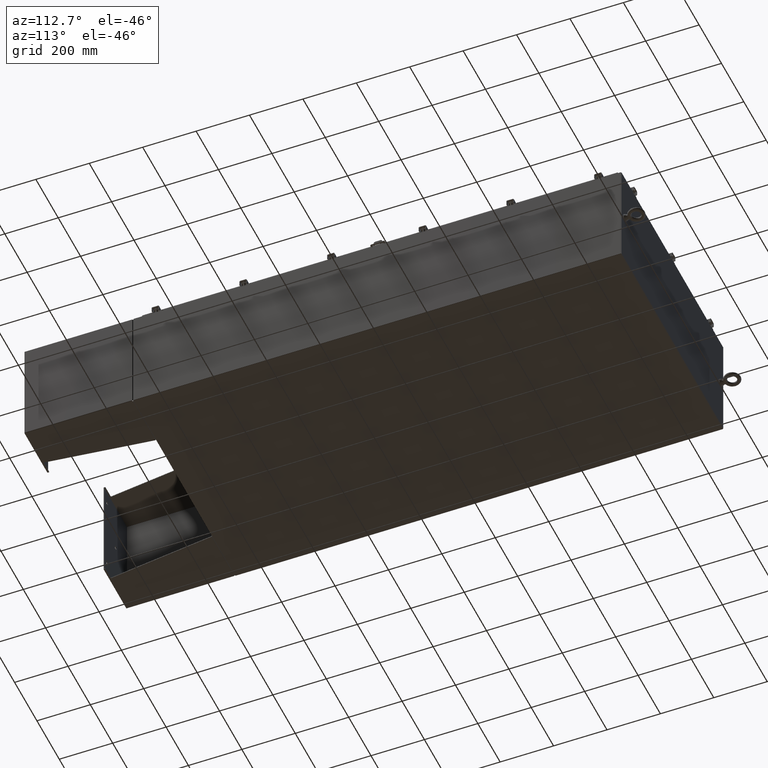
[diagram: clean part render]
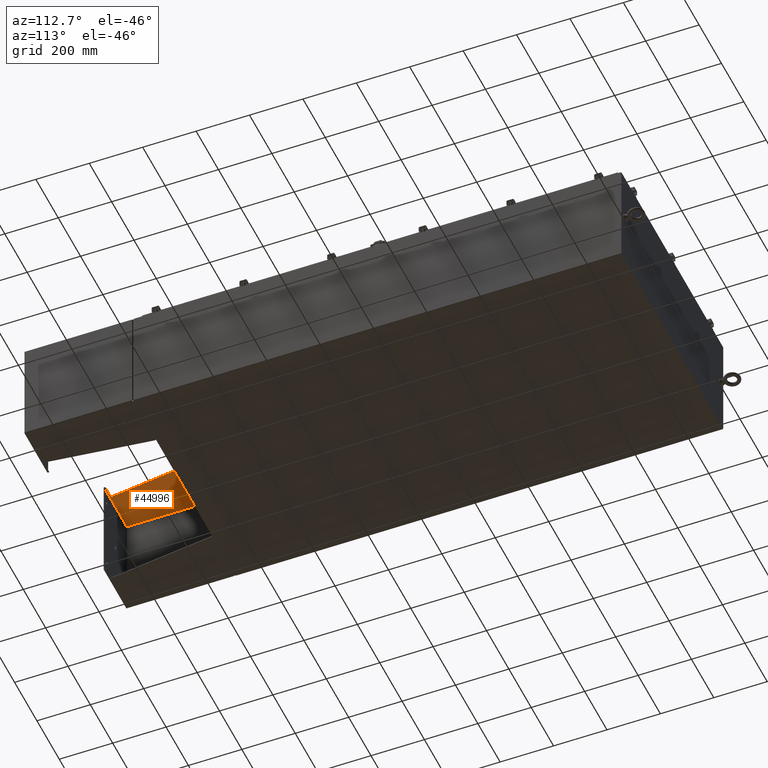
[diagram: same view with one face highlighted and labeled with its STEP entity id]
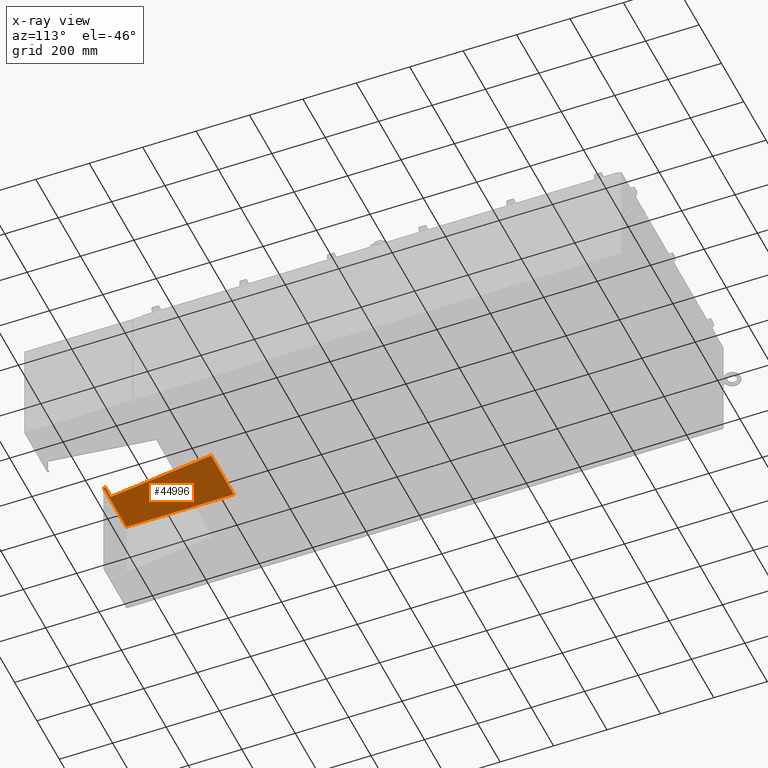
[diagram: x-ray of the same camera — body ghosted, the highlighted face saturated]
A machine part, auxiliary view. The second image highlights one B-rep face of the part: STEP entity #44996.
The next image is the same camera in x-ray: the body ghosted, the highlighted face saturated — about 39% of this face is hidden behind the body in this view.
In plain terms, the highlighted planar face has unit normal (0, 0, -1).
Its self-contained STEP definition (entity closure, byte-faithful):
#1119 = VERTEX_POINT ( 'NONE', #24673 ) ;
#1674 = VERTEX_POINT ( 'NONE', #53572 ) ;
#2263 = CARTESIAN_POINT ( 'NONE',  ( -7.896000000000027400, -7.999999999999999100, 8.000999999999999400 ) ) ;
#3708 = CARTESIAN_POINT ( 'NONE',  ( -7.896000000000027400, -7.749999999999999100, 8.001000000000006600 ) ) ;
#5910 = EDGE_CURVE ( 'NONE', #1674, #1119, #19655, .T. ) ;
#7036 = EDGE_CURVE ( 'NONE', #60399, #39301, #62169, .T. ) ;
#8759 = DIRECTION ( 'NONE',  ( 1.000000000000000000, 0.0000000000000000000, 3.550958521948298200E-015 ) ) ;
#10045 = ORIENTED_EDGE ( 'NONE', *, *, #36033, .F. ) ;
#10067 = EDGE_CURVE ( 'NONE', #66389, #60399, #32018, .T. ) ;
#11601 = VECTOR ( 'NONE', #39288, 39.37007874015748100 ) ;
#12804 = EDGE_LOOP ( 'NONE', ( #38095, #35511, #64854, #33493, #21944, #10045 ) ) ;
#16152 = VECTOR ( 'NONE', #66060, 39.37007874015748100 ) ;
#19655 = LINE ( 'NONE', #23741, #31736 ) ;
#20076 = FACE_OUTER_BOUND ( 'NONE', #12804, .T. ) ;
#21204 = DIRECTION ( 'NONE',  ( 0.0000000000000000000, 0.0000000000000000000, -1.000000000000000000 ) ) ;
#21944 = ORIENTED_EDGE ( 'NONE', *, *, #72147, .F. ) ;
#22257 = DIRECTION ( 'NONE',  ( 0.0000000000000000000, -1.000000000000000000, 0.0000000000000000000 ) ) ;
#23741 = CARTESIAN_POINT ( 'NONE',  ( -7.896000000000019400, -7.749999999999999100, 6.052216497445928500 ) ) ;
#24217 = VECTOR ( 'NONE', #21204, 39.37007874015748100 ) ;
#24673 = CARTESIAN_POINT ( 'NONE',  ( -7.896000000000013200, 7.857000000000001100, 8.000999999999999400 ) ) ;
#29422 = LINE ( 'NONE', #3708, #11601 ) ;
#31736 = VECTOR ( 'NONE', #40929, 39.37007874015748100 ) ;
#32018 = LINE ( 'NONE', #68099, #16152 ) ;
#33354 = CARTESIAN_POINT ( 'NONE',  ( -7.895999999999998100, 7.857000000000002000, 0.03900000000000031900 ) ) ;
#33493 = ORIENTED_EDGE ( 'NONE', *, *, #10067, .F. ) ;
#35511 = ORIENTED_EDGE ( 'NONE', *, *, #63116, .F. ) ;
#35929 = LINE ( 'NONE', #51816, #49912 ) ;
#36033 = EDGE_CURVE ( 'NONE', #1119, #45714, #52018, .T. ) ;
#38095 = ORIENTED_EDGE ( 'NONE', *, *, #5910, .F. ) ;
#39288 = DIRECTION ( 'NONE',  ( 3.550958521948298200E-015, 0.0000000000000000000, -1.000000000000000000 ) ) ;
#39301 = VERTEX_POINT ( 'NONE', #39669 ) ;
#39669 = CARTESIAN_POINT ( 'NONE',  ( -7.896000000000027400, -7.749999999999999100, 8.001000000000006600 ) ) ;
#40929 = DIRECTION ( 'NONE',  ( -4.399772607369800400E-016, 0.9922942345449394800, 0.1239038017531047900 ) ) ;
#44996 = ADVANCED_FACE ( 'NONE', ( #20076 ), #50150, .T. ) ;
#45714 = VERTEX_POINT ( 'NONE', #33354 ) ;
#46366 = VECTOR ( 'NONE', #64794, 39.37007874015748100 ) ;
#49912 = VECTOR ( 'NONE', #22257, 39.37007874015748100 ) ;
#50150 = PLANE ( 'NONE',  #54975 ) ;
#51816 = CARTESIAN_POINT ( 'NONE',  ( -7.895999999999999000, 8.000000000000001800, 0.03900000000000031900 ) ) ;
#52018 = LINE ( 'NONE', #62413, #24217 ) ;
#53572 = CARTESIAN_POINT ( 'NONE',  ( -7.896000000000019400, -7.749999999999999100, 6.052216497445928500 ) ) ;
#54972 = DIRECTION ( 'NONE',  ( 3.550958521948298200E-015, 0.0000000000000000000, -1.000000000000000000 ) ) ;
#54975 = AXIS2_PLACEMENT_3D ( 'NONE', #55896, #8759, #54972 ) ;
#55896 = CARTESIAN_POINT ( 'NONE',  ( -7.896000000000027400, 8.000000000000001800, 8.000999999999999400 ) ) ;
#60399 = VERTEX_POINT ( 'NONE', #2263 ) ;
#62169 = LINE ( 'NONE', #76441, #46366 ) ;
#62413 = CARTESIAN_POINT ( 'NONE',  ( -7.896000000000013200, 7.857000000000001100, 8.000999999999999400 ) ) ;
#63116 = EDGE_CURVE ( 'NONE', #39301, #1674, #29422, .T. ) ;
#64794 = DIRECTION ( 'NONE',  ( -0.0000000000000000000, 1.000000000000000000, -0.0000000000000000000 ) ) ;
#64854 = ORIENTED_EDGE ( 'NONE', *, *, #7036, .F. ) ;
#66060 = DIRECTION ( 'NONE',  ( -3.550958521948298200E-015, -0.0000000000000000000, 1.000000000000000000 ) ) ;
#66389 = VERTEX_POINT ( 'NONE', #67671 ) ;
#67671 = CARTESIAN_POINT ( 'NONE',  ( -7.895999999999998100, -7.999999999999999100, 0.03899999999999813300 ) ) ;
#68099 = CARTESIAN_POINT ( 'NONE',  ( -7.896000000000027400, -7.999999999999999100, 8.000999999999999400 ) ) ;
#72147 = EDGE_CURVE ( 'NONE', #45714, #66389, #35929, .T. ) ;
#76441 = CARTESIAN_POINT ( 'NONE',  ( -7.896000000000027400, 8.000000000000001800, 8.000999999999999400 ) ) ;